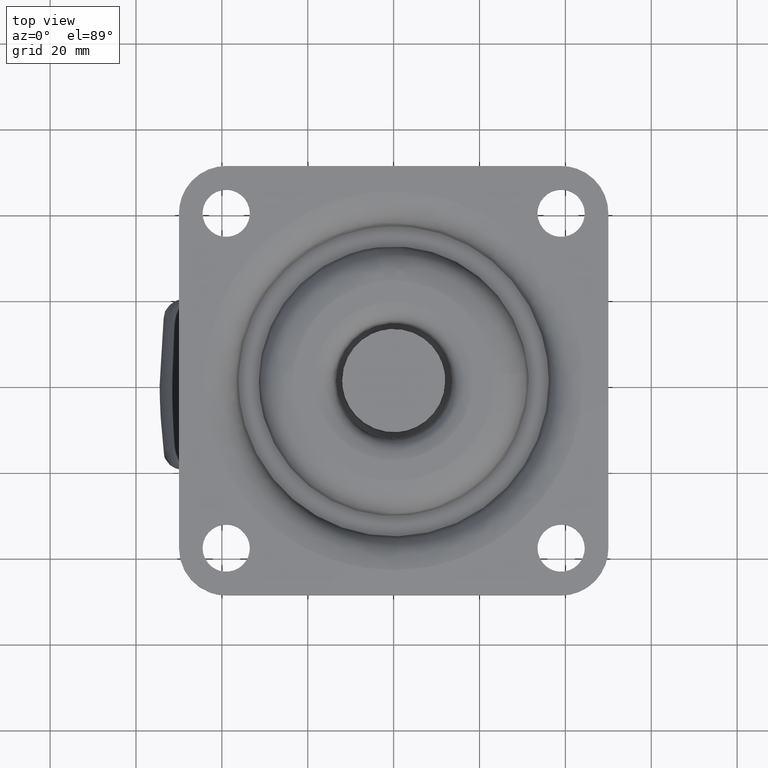
[diagram: clean part render]
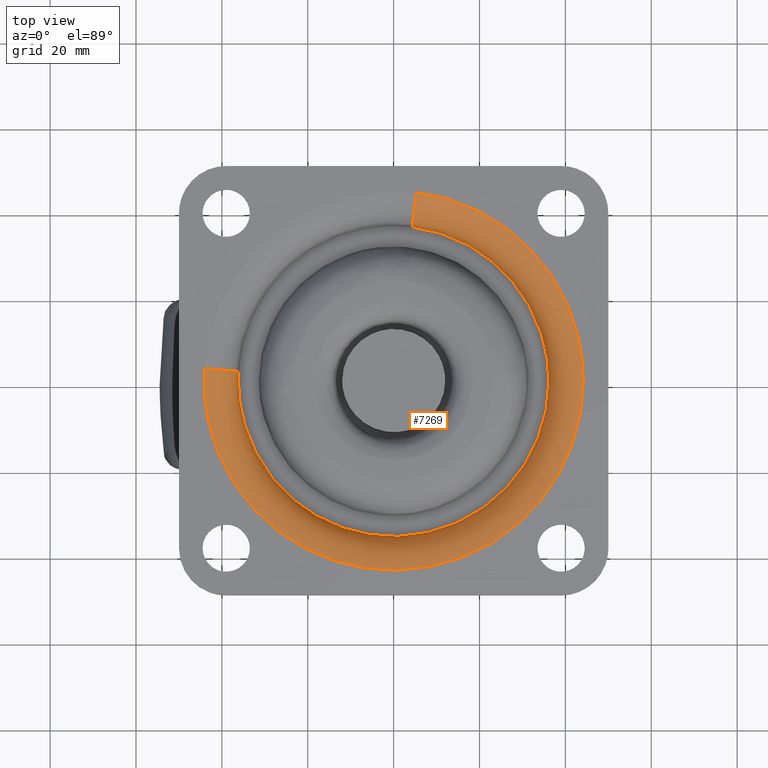
[diagram: same view with one face highlighted and labeled with its STEP entity id]
A machine part, top view. The second image highlights one B-rep face of the part: STEP entity #7269.
In plain terms, the highlighted face is a freeform B-spline surface patch.
Its self-contained STEP definition (entity closure, byte-faithful):
#7114=CARTESIAN_POINT('',(4.328017626541578,35.876811049493234,-7.979115406863389));
#7115=CARTESIAN_POINT('',(38.208407553800690,31.789632715917492,-7.979115406863389));
#7116=CARTESIAN_POINT('',(36.065616469816987,-2.269056259496279,-7.979115406863387));
#7117=CARTESIAN_POINT('',(33.796560210320720,-38.334672729313255,-7.979115406863389));
#7118=CARTESIAN_POINT('',(-2.269056259496268,-36.065616469816987,-7.979115406863387));
#7119=CARTESIAN_POINT('',(-38.334672729313255,-33.796560210320727,-7.979115406863389));
#7120=CARTESIAN_POINT('',(-36.065616469816987,2.269056259496266,-7.979115406863387));
#7121=CARTESIAN_POINT('',(4.330686149913186,35.898931594519937,0.555730130337623));
#7122=CARTESIAN_POINT('',(38.231965689960745,31.809233231718775,0.555730130337622));
#7123=CARTESIAN_POINT('',(36.087853426494540,-2.270455290226381,0.555730130337623));
#7124=CARTESIAN_POINT('',(33.817398136268181,-38.358308716720920,0.555730130337622));
#7125=CARTESIAN_POINT('',(-2.270455290226372,-36.087853426494540,0.555730130337623));
#7126=CARTESIAN_POINT('',(-38.358308716720920,-33.817398136268181,0.555730130337622));
#7127=CARTESIAN_POINT('',(-36.087853426494540,2.270455290226368,0.555730130337623));
#7128=CARTESIAN_POINT('',(5.350571055740812,44.353198932577492,-0.018102021887414));
#7129=CARTESIAN_POINT('',(47.235667038323825,39.300368750655146,-0.018102021887414));
#7130=CARTESIAN_POINT('',(44.586612218825728,-2.805151871714927,-0.018102021887414));
#7131=CARTESIAN_POINT('',(41.781460347110823,-47.391764090540640,-0.018102021887414));
#7132=CARTESIAN_POINT('',(-2.805151871714914,-44.586612218825728,-0.018102021887414));
#7133=CARTESIAN_POINT('',(-47.391764090540640,-41.781460347110823,-0.018102021887414));
#7134=CARTESIAN_POINT('',(-44.586612218825728,2.805151871714911,-0.018102021887414));
#7142=(BOUNDED_SURFACE()B_SPLINE_SURFACE(2,2,((#7114,#7121,#7128),(#7115,#7122,#7129),(#7116,#7123,#7130),(#7117,#7124,#7131),(#7118,#7125,#7132),(#7119,#7126,#7133),(#7120,#7127,#7134)),.UNSPECIFIED.,.F.,.F.,.U.)B_SPLINE_SURFACE_WITH_KNOTS((3,2,2,3),(3,3),(0.0,71.058795509320873,145.078374164863500,219.097952820405990),(0.0,13.865131008432099),.UNSPECIFIED.)GEOMETRIC_REPRESENTATION_ITEM()RATIONAL_B_SPLINE_SURFACE(((0.893244157529455,0.610139847903406,0.891116838198675),(0.656859536568950,0.448674838069528,0.655295182659694),(0.913799341960804,0.624180283541134,0.911623069115108),(0.646153711344289,0.441362111174878,0.644614854057386),(0.913799341960804,0.624180283541134,0.911623069115108),(0.646153711344289,0.441362111174878,0.644614854057386),(0.913799341960804,0.624180283541134,0.911623069115108)))REPRESENTATION_ITEM('')SURFACE());
#7143=CARTESIAN_POINT('',(4.330302248035316,35.896095670603358,-7.442533476662674));
#7144=VERTEX_POINT('',#7143);
#7145=CARTESIAN_POINT('',(36.156345000000201,0.0,-7.442517281741189));
#7146=VERTEX_POINT('',#7145);
#7147=CARTESIAN_POINT('',(4.330302248035316,35.896095670603358,-7.442533476662674));
#7148=CARTESIAN_POINT('',(36.156344932255173,32.056782197780166,-7.442525379201934));
#7149=CARTESIAN_POINT('',(36.156345000000201,0.0,-7.442517281741189));
#7157=(BOUNDED_CURVE()B_SPLINE_CURVE(2,(#7147,#7148,#7149),.UNSPECIFIED.,.F.,.U.)B_SPLINE_CURVE_WITH_KNOTS((3,3),(0.270732209906381,0.500000000000000),.UNSPECIFIED.)CURVE()GEOMETRIC_REPRESENTATION_ITEM()RATIONAL_B_SPLINE_CURVE((0.955449976520491,0.731396075956932,1.0))REPRESENTATION_ITEM(''));
#7158=EDGE_CURVE('',#7144,#7146,#7157,.T.);
#7159=ORIENTED_EDGE('',*,*,#7158,.T.);
#7160=CARTESIAN_POINT('',(-36.156345000000201,0.0,-7.442517281741189));
#7161=VERTEX_POINT('',#7160);
#7162=CARTESIAN_POINT('',(36.156345000000201,0.0,-7.442517281741189));
#7163=CARTESIAN_POINT('',(36.156345000000208,-36.156345000000208,-7.442517281741191));
#7164=CARTESIAN_POINT('',(0.0,-36.156345000000201,-7.442517281741189));
#7165=CARTESIAN_POINT('',(-36.156345000000208,-36.156345000000208,-7.442517281741191));
#7166=CARTESIAN_POINT('',(-36.156345000000201,0.0,-7.442517281741189));
#7174=(BOUNDED_CURVE()B_SPLINE_CURVE(2,(#7162,#7163,#7164,#7165,#7166),.UNSPECIFIED.,.F.,.U.)B_SPLINE_CURVE_WITH_KNOTS((3,2,3),(0.500000000000000,0.750000000000000,1.0),.UNSPECIFIED.)CURVE()GEOMETRIC_REPRESENTATION_ITEM()RATIONAL_B_SPLINE_CURVE((1.0,0.707106781186548,1.0,0.707106781186548,1.0))REPRESENTATION_ITEM(''));
#7175=EDGE_CURVE('',#7146,#7161,#7174,.T.);
#7176=ORIENTED_EDGE('',*,*,#7175,.T.);
#7177=CARTESIAN_POINT('',(-36.085000395146928,2.270231056064083,-7.442533355205443));
#7178=VERTEX_POINT('',#7177);
#7179=CARTESIAN_POINT('',(-36.156345000000201,0.0,-7.442517281741189));
#7180=CARTESIAN_POINT('',(-36.156344439703261,1.136236535643714,-7.442525318473316));
#7181=CARTESIAN_POINT('',(-36.085000395146928,2.270231056064082,-7.442533355205443));
#7189=(BOUNDED_CURVE()B_SPLINE_CURVE(2,(#7179,#7180,#7181),.UNSPECIFIED.,.F.,.U.)B_SPLINE_CURVE_WITH_KNOTS((3,3),(0.0,0.010967876327475),.UNSPECIFIED.)CURVE()GEOMETRIC_REPRESENTATION_ITEM()RATIONAL_B_SPLINE_CURVE((1.0,0.987150333595591,0.975428135606966))REPRESENTATION_ITEM(''));
#7190=EDGE_CURVE('',#7161,#7178,#7189,.T.);
#7191=ORIENTED_EDGE('',*,*,#7190,.T.);
#7192=CARTESIAN_POINT('',(-44.049803089740379,2.771378704130989,-1.252076E-015));
#7193=VERTEX_POINT('',#7192);
#7194=CARTESIAN_POINT('',(-36.085000395146928,2.270231056064083,-7.442533355205443));
#7195=CARTESIAN_POINT('',(-36.603857387479728,2.302897139486724,-1.586607E-009));
#7196=CARTESIAN_POINT('',(-44.049803089740372,2.771378704130989,-1.252076E-015));
#7204=(BOUNDED_CURVE()B_SPLINE_CURVE(2,(#7194,#7195,#7196),.UNSPECIFIED.,.F.,.U.)B_SPLINE_CURVE_WITH_KNOTS((3,3),(-1.720605239596892,-0.285348507324323),.UNSPECIFIED.)CURVE()GEOMETRIC_REPRESENTATION_ITEM()RATIONAL_B_SPLINE_CURVE((0.888684378971093,0.649196452729293,0.886705694352691))REPRESENTATION_ITEM(''));
#7205=EDGE_CURVE('',#7178,#7193,#7204,.T.);
#7206=ORIENTED_EDGE('',*,*,#7205,.T.);
#7207=CARTESIAN_POINT('',(-44.136897175059403,0.0,0.0));
#7208=VERTEX_POINT('',#7207);
#7209=CARTESIAN_POINT('',(-44.136897175059403,0.0,0.0));
#7210=CARTESIAN_POINT('',(-44.136897175059403,1.387057873102486,0.0));
#7211=CARTESIAN_POINT('',(-44.049803089740379,2.771378704130989,-1.252076E-015));
#7219=(BOUNDED_CURVE()B_SPLINE_CURVE(2,(#7209,#7210,#7211),.UNSPECIFIED.,.F.,.U.)B_SPLINE_CURVE_WITH_KNOTS((3,3),(0.0,0.010968089260813),.UNSPECIFIED.)CURVE()GEOMETRIC_REPRESENTATION_ITEM()RATIONAL_B_SPLINE_CURVE((1.0,0.987150084128668,0.975427680451503))REPRESENTATION_ITEM(''));
#7220=EDGE_CURVE('',#7208,#7193,#7219,.T.);
#7221=ORIENTED_EDGE('',*,*,#7220,.F.);
#7222=CARTESIAN_POINT('',(44.136897175059403,0.0,0.0));
#7223=VERTEX_POINT('',#7222);
#7224=CARTESIAN_POINT('',(44.136897175059403,0.0,0.0));
#7225=CARTESIAN_POINT('',(44.136897175059403,-44.136897175059403,0.0));
#7226=CARTESIAN_POINT('',(0.0,-44.136897175059403,0.0));
#7227=CARTESIAN_POINT('',(-44.136897175059403,-44.136897175059403,0.0));
#7228=CARTESIAN_POINT('',(-44.136897175059403,0.0,0.0));
#7236=(BOUNDED_CURVE()B_SPLINE_CURVE(2,(#7224,#7225,#7226,#7227,#7228),.UNSPECIFIED.,.F.,.U.)B_SPLINE_CURVE_WITH_KNOTS((3,2,3),(0.500000000000000,0.750000000000000,1.0),.UNSPECIFIED.)CURVE()GEOMETRIC_REPRESENTATION_ITEM()RATIONAL_B_SPLINE_CURVE((1.0,0.707106781186548,1.0,0.707106781186548,1.0))REPRESENTATION_ITEM(''));
#7237=EDGE_CURVE('',#7223,#7208,#7236,.T.);
#7238=ORIENTED_EDGE('',*,*,#7237,.F.);
#7239=CARTESIAN_POINT('',(5.286151822269391,43.819200027385818,-1.280889E-015));
#7240=VERTEX_POINT('',#7239);
#7241=CARTESIAN_POINT('',(5.286151822269391,43.819200027385804,-1.280889E-015));
#7242=CARTESIAN_POINT('',(44.136897175059403,39.132420301475626,0.0));
#7243=CARTESIAN_POINT('',(44.136897175059403,0.0,0.0));
#7251=(BOUNDED_CURVE()B_SPLINE_CURVE(2,(#7241,#7242,#7243),.UNSPECIFIED.,.F.,.U.)B_SPLINE_CURVE_WITH_KNOTS((3,3),(0.270732403715202,0.500000000000000),.UNSPECIFIED.)CURVE()GEOMETRIC_REPRESENTATION_ITEM()RATIONAL_B_SPLINE_CURVE((0.955449597718203,0.731396303018089,1.0))REPRESENTATION_ITEM(''));
#7252=EDGE_CURVE('',#7240,#7223,#7251,.T.);
#7253=ORIENTED_EDGE('',*,*,#7252,.F.);
#7254=CARTESIAN_POINT('',(4.330302248035316,35.896095670603358,-7.442533476662674));
#7255=CARTESIAN_POINT('',(4.392587904102851,36.412235224519144,-2.399947E-009));
#7256=CARTESIAN_POINT('',(5.286151822269391,43.819200027385811,-1.280889E-015));
#7264=(BOUNDED_CURVE()B_SPLINE_CURVE(2,(#7254,#7255,#7256),.UNSPECIFIED.,.F.,.U.)B_SPLINE_CURVE_WITH_KNOTS((3,3),(-1.720605255628299,-0.285348507438865),.UNSPECIFIED.)CURVE()GEOMETRIC_REPRESENTATION_ITEM()RATIONAL_B_SPLINE_CURVE((0.868694140749937,0.634593295823950,0.866759959790770))REPRESENTATION_ITEM(''));
#7265=EDGE_CURVE('',#7144,#7240,#7264,.T.);
#7266=ORIENTED_EDGE('',*,*,#7265,.F.);
#7267=EDGE_LOOP('',(#7159,#7176,#7191,#7206,#7221,#7238,#7253,#7266));
#7268=FACE_OUTER_BOUND('',#7267,.T.);
#7269=ADVANCED_FACE('',(#7268),#7142,.T.);